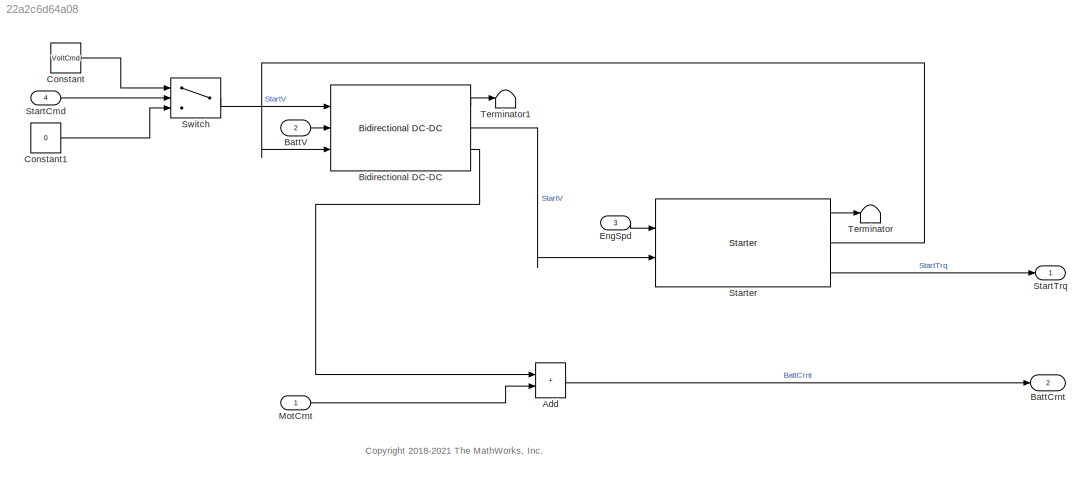
MODEL slx_22a2c6d64a08
KIND model
CONFIG AbsTol = auto
CONFIG EnableMultiTasking = off
CONFIG FixedStep = auto
CONFIG MaxStep = auto
CONFIG MinStep = auto
CONFIG RelTol = 1e-3
CONFIG SampleTimeConstraint = Unconstrained
CONFIG SolverName = VariableStepAuto
CONFIG StartTime = 0.0
CONFIG StopTime = inf
WORKSPACE source: mxarray member
WORKSPACE Iafser: Simulink.Parameter (value not decoded)
WORKSPACE Lafser: Simulink.Parameter (value not decoded)
WORKSPACE Lser: Simulink.Parameter (value not decoded)
WORKSPACE Plimit: Simulink.Parameter (value not decoded)
WORKSPACE Rser: Simulink.Parameter (value not decoded)
WORKSPACE Tc: Simulink.Parameter (value not decoded)
WORKSPACE Vinit: Simulink.Parameter (value not decoded)
WORKSPACE VoltCmd: Simulink.Parameter (value not decoded)
WORKSPACE eff: Simulink.Parameter (value not decoded)
BLOCK [Sum] Add
  IconShape = rectangular
  Ports = [2, 1]
BLOCK [Outport] BattCrnt
  NameLocation = top
  Port = 2
  VectorParamsAs1DForOutWhenUnconnected = off
BLOCK [Inport] BattV
  Port = 2
BLOCK [Reference] Bidirectional DC-DC  REF=autolibdcdc/Bidirectional DC-DC
  Ports = [3, 3]
  SourceBlock = autolibdcdc/Bidirectional DC-DC
  SourceProductBaseCode = PW
  SourceType = DcToDcConverter
BLOCK [Constant] Constant
  Value = VoltCmd
BLOCK [Constant] Constant1
  Value = 0
BLOCK [Inport] EngSpd
  Port = 3
BLOCK [Inport] MotCrnt
BLOCK [Inport] StartCmd
  Port = 4
BLOCK [Outport] StartTrq
  VectorParamsAs1DForOutWhenUnconnected = off
BLOCK [Reference] Starter  REF=autolibstarter/Starter
  Ports = [2, 3]
  SourceBlock = autolibstarter/Starter
  SourceProductBaseCode = PW
  SourceType = Starter Motor
BLOCK [Switch] Switch
  Criteria = u2 > Threshold
  InputSameDT = off
  SaturateOnIntegerOverflow = off
BLOCK [Terminator] Terminator
BLOCK [Terminator] Terminator1
ANNOTATION (root): <copyright redacted>
LINE Add:1 -> BattCrnt:1
LINE BattV:1 -> Bidirectional DC-DC:2
LINE Bidirectional DC-DC:1 -> Terminator1:1
LINE Bidirectional DC-DC:2 -> Starter:2
LINE Bidirectional DC-DC:3 -> Add:1
LINE Constant1:1 -> Switch:3
LINE Constant:1 -> Switch:1
LINE EngSpd:1 -> Starter:1
LINE MotCrnt:1 -> Add:2
LINE StartCmd:1 -> Switch:2
LINE Starter:1 -> Terminator:1
LINE Starter:2 -> Bidirectional DC-DC:3
LINE Starter:3 -> StartTrq:1
LINE Switch:1 -> Bidirectional DC-DC:1
